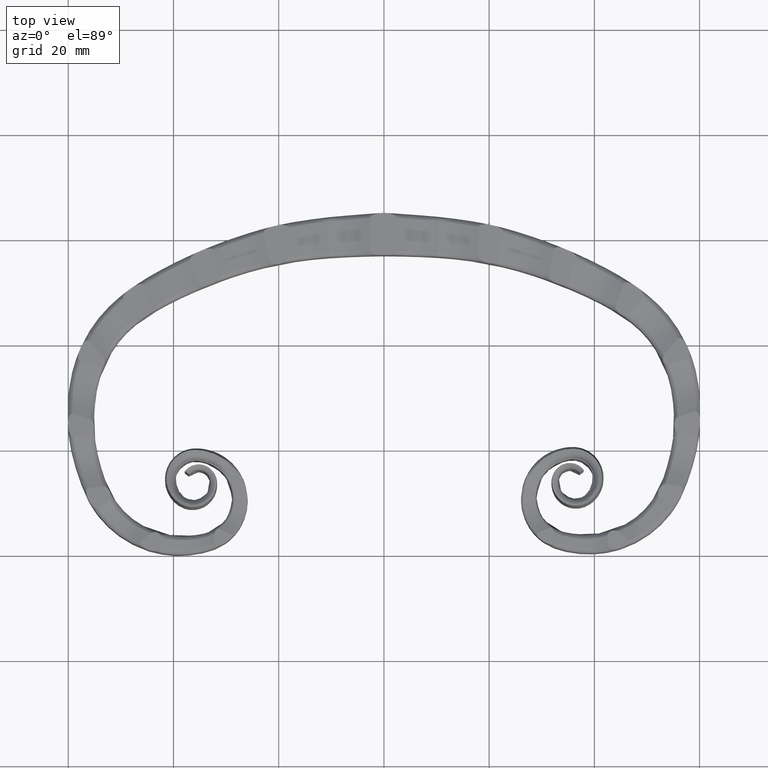
[diagram: clean part render]
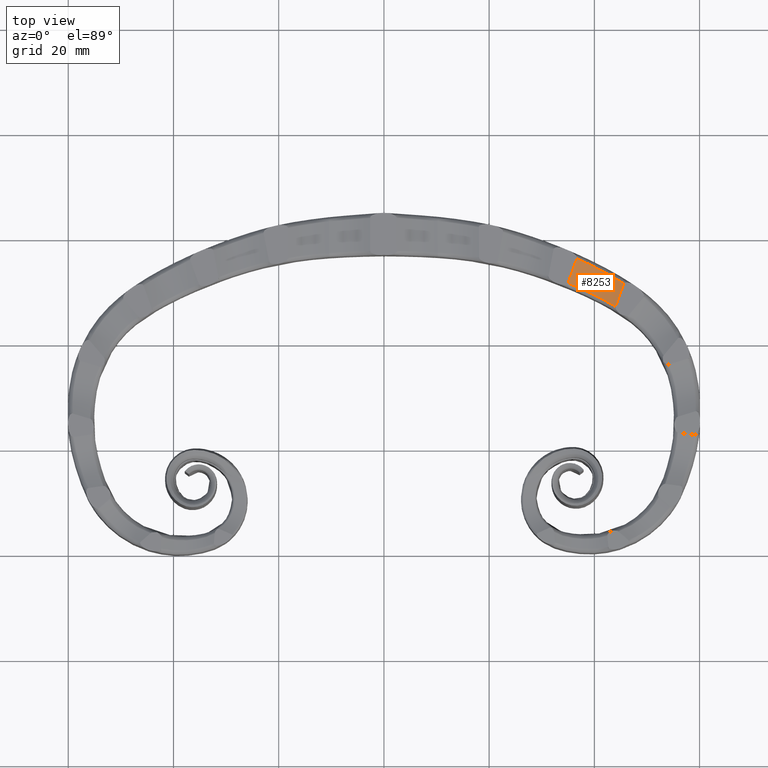
[diagram: same view with one face highlighted and labeled with its STEP entity id]
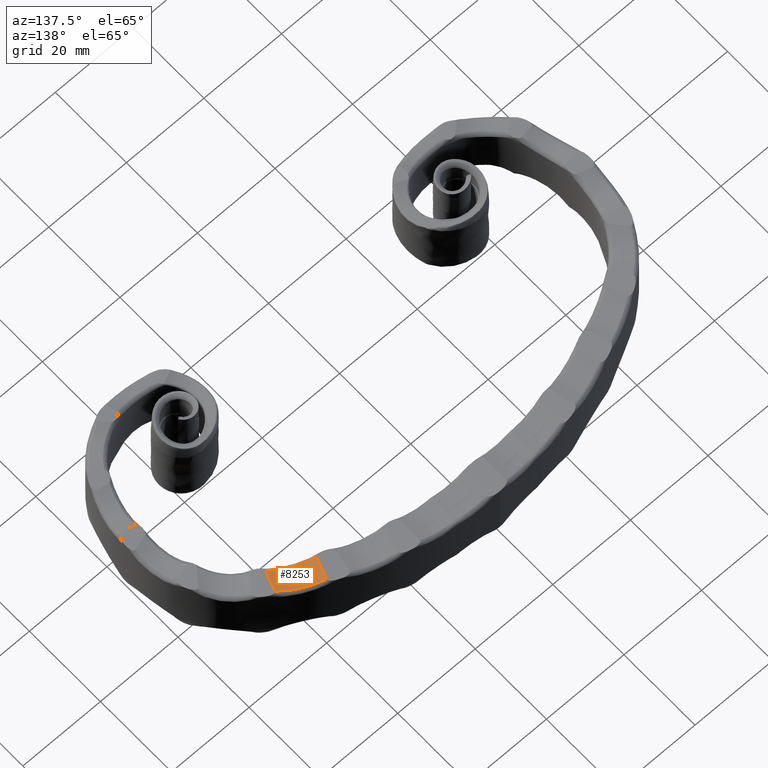
[diagram: same view with one face highlighted and labeled with its STEP entity id]
A machine part, top view. The second image highlights one B-rep face of the part: STEP entity #8253.
A second angle (auxiliary view) of the same face is appended — the face is thin or edge-on in the first view.
In plain terms, the highlighted cylindrical surface (partial cylindrical patch) has radius 13 mm, axis along (0.3354, 0.9421, -0).
Its self-contained STEP definition (entity closure, byte-faithful):
#975 = AXIS2_PLACEMENT_3D ( 'NONE', #5835, #10075, #14158 ) ;
#1256 = CARTESIAN_POINT ( 'NONE',  ( 38.15030209471146350, 55.63982523984591211, 7.416338158384940371 ) ) ;
#1363 = CARTESIAN_POINT ( 'NONE',  ( 37.40074678043171019, 55.98658624661630512, 7.665265697670046841 ) ) ;
#1475 = CARTESIAN_POINT ( 'NONE',  ( 40.44821603144964683, 54.51280984171898325, 7.019454504865123567 ) ) ;
#1507 = FACE_OUTER_BOUND ( 'NONE', #10485, .T. ) ;
#1598 = CARTESIAN_POINT ( 'NONE',  ( 44.02497945357860232, 47.17216213333128394, 7.999999999999998224 ) ) ;
#2621 = CARTESIAN_POINT ( 'NONE',  ( 43.82529224350909658, 52.64350867512079191, 7.338339782069952300 ) ) ;
#2831 = CARTESIAN_POINT ( 'NONE',  ( 40.37584020247008709, 49.20499599032513771, 7.022780855563306446 ) ) ;
#3469 = CARTESIAN_POINT ( 'NONE',  ( 24.15392766638068522, -8.649151234571599289, 7.999999999999998224 ) ) ;
#3894 = ORIENTED_EDGE ( 'NONE', *, *, #4202, .F. ) ;
#3920 = CARTESIAN_POINT ( 'NONE',  ( 44.89541346949610556, 51.98130044979595965, 7.692236888622817403 ) ) ;
#3994 = CARTESIAN_POINT ( 'NONE',  ( 36.66563244076937877, 56.31703211054389158, 7.999999999999996447 ) ) ;
#4005 = CARTESIAN_POINT ( 'NONE',  ( 43.33156289523044791, 47.59239289847433696, 7.691841660486036680 ) ) ;
#4202 = EDGE_CURVE ( 'NONE', #9231, #7543, #14065, .T. ) ;
#4308 = CARTESIAN_POINT ( 'NONE',  ( 35.37427147674651451, 51.49547221686600551, 7.833172037684717814 ) ) ;
#4580 = CARTESIAN_POINT ( 'NONE',  ( 44.02497945357860232, 47.17216213333128394, 7.999999999999998224 ) ) ;
#5190 = DIRECTION ( 'NONE',  ( 0.3353613451965385961, 0.9420895754374782882, -1.339384074314617008E-17 ) ) ;
#5510 = CARTESIAN_POINT ( 'NONE',  ( 38.05554978816153522, 50.32735156432014634, 7.080763722171203867 ) ) ;
#5520 = CARTESIAN_POINT ( 'NONE',  ( 45.24104576776642972, 51.75908994349779135, 7.836402132041729196 ) ) ;
#5565 = CARTESIAN_POINT ( 'NONE',  ( 39.98726013714549055, 49.40012106735570541, 7.000722689652190134 ) ) ;
#5724 = CARTESIAN_POINT ( 'NONE',  ( 35.75047769276639542, 51.33784604956910869, 7.686931047325169963 ) ) ;
#5745 = CARTESIAN_POINT ( 'NONE',  ( 45.57846084230289563, 51.53616723682822709, 7.999999999999996447 ) ) ;
#5758 = DIRECTION ( 'NONE',  ( 0.3353613451965385961, 0.9420895754374782882, -1.339384074314617008E-17 ) ) ;
#5835 = CARTESIAN_POINT ( 'NONE',  ( 19.44347978919330799, -6.972344508588914636, 19.99999999999999645 ) ) ;
#6904 = CARTESIAN_POINT ( 'NONE',  ( 45.57846084230289563, 51.53616723682822709, 7.999999999999996447 ) ) ;
#7098 = LINE ( 'NONE', #10483, #12387 ) ;
#7117 = CARTESIAN_POINT ( 'NONE',  ( 41.51583699414582185, 48.61150904127357109, 7.172592170416685065 ) ) ;
#7528 = VECTOR ( 'NONE', #5190, 1000.000000000000000 ) ;
#7543 = VERTEX_POINT ( 'NONE', #12637 ) ;
#7556 = ORIENTED_EDGE ( 'NONE', *, *, #15381, .T. ) ;
#8037 = CARTESIAN_POINT ( 'NONE',  ( 42.61800393445714974, 48.00485570996146834, 7.444049971249391717 ) ) ;
#8253 = ADVANCED_FACE ( 'NONE', ( #1507 ), #15123, .F. ) ;
#8425 = CARTESIAN_POINT ( 'NONE',  ( 36.89971677454056476, 50.84298121031700646, 7.330408667449920479 ) ) ;
#9231 = VERTEX_POINT ( 'NONE', #4580 ) ;
#9474 = CARTESIAN_POINT ( 'NONE',  ( 39.67582566799265464, 54.90147351933491393, 7.103035211764297863 ) ) ;
#9482 = VERTEX_POINT ( 'NONE', #5745 ) ;
#10075 = DIRECTION ( 'NONE',  ( 0.3353613451965385961, 0.9420895754374782882, -1.339384074314617008E-17 ) ) ;
#10483 = CARTESIAN_POINT ( 'NONE',  ( 14.73303191200592366, -5.295537782606221988, 7.999999999999998224 ) ) ;
#10485 = EDGE_LOOP ( 'NONE', ( #7556, #15086, #11650, #3894 ) ) ;
#10793 = CARTESIAN_POINT ( 'NONE',  ( 43.68283558574085390, 47.38322639853146967, 7.836202930379057463 ) ) ;
#10830 = CARTESIAN_POINT ( 'NONE',  ( 44.18725211285153875, 52.42371823975766887, 7.443004931177667594 ) ) ;
#11207 = CARTESIAN_POINT ( 'NONE',  ( 35.00353796045568799, 51.64791354418665748, 7.999999999999998224 ) ) ;
#11650 = ORIENTED_EDGE ( 'NONE', *, *, #15568, .F. ) ;
#12387 = VECTOR ( 'NONE', #5758, 1000.000000000000000 ) ;
#12435 = CARTESIAN_POINT ( 'NONE',  ( 36.51344628728100616, 51.01152891585614668, 7.435364849714431124 ) ) ;
#12637 = CARTESIAN_POINT ( 'NONE',  ( 35.00353796045568799, 51.64791354418665748, 7.999999999999998224 ) ) ;
#13610 = CARTESIAN_POINT ( 'NONE',  ( 41.98274345332330171, 53.70642587202807761, 7.001961586875930621 ) ) ;
#13657 = VERTEX_POINT ( 'NONE', #3994 ) ;
#13815 = CARTESIAN_POINT ( 'NONE',  ( 42.25481380541391019, 48.20859008205419372, 7.340183576659549125 ) ) ;
#13865 = CARTESIAN_POINT ( 'NONE',  ( 38.82804184007454751, 49.96787131950719640, 6.998607655529240468 ) ) ;
#14065 = B_SPLINE_CURVE_WITH_KNOTS ( 'NONE', 3,
 ( #1598, #10793, #4005, #8037, #13815, #7117, #15080, #2831, #5565, #13865, #5510, #8425, #12435, #5724, #4308, #11207 ),
 .UNSPECIFIED., .F., .F.,
 ( 4, 2, 2, 2, 2, 2, 2, 4 ),
 ( 1.734723475976805554E-18, 0.001302201858645006885, 0.002604403717290012035, 0.003906605575935017186, 0.005208807434580022336, 0.007813211151870023963, 0.009115413010515029113, 0.01041761486916003426 ),
 .UNSPECIFIED. ) ;
#14158 = DIRECTION ( 'NONE',  ( 0.9420895754374782882, -0.3353613451965384296, 0.000000000000000000 ) ) ;
#14748 = LINE ( 'NONE', #3469, #7528 ) ;
#15035 = CARTESIAN_POINT ( 'NONE',  ( 42.73021646640822979, 53.28982233176957806, 7.087501561981574660 ) ) ;
#15080 = CARTESIAN_POINT ( 'NONE',  ( 41.14005096975073172, 48.81069365813981875, 7.108864605251484114 ) ) ;
#15086 = ORIENTED_EDGE ( 'NONE', *, *, #16757, .F. ) ;
#15123 = CYLINDRICAL_SURFACE ( 'NONE', #975, 13.00000000000000000 ) ;
#15381 = EDGE_CURVE ( 'NONE', #9231, #9482, #14748, .T. ) ;
#15535 = B_SPLINE_CURVE_WITH_KNOTS ( 'NONE', 3,
 ( #15710, #1363, #1256, #16308, #9474, #1475, #17637, #13610, #15035, #2621, #10830, #3920, #5520, #6904 ),
 .UNSPECIFIED., .F., .F.,
 ( 4, 2, 2, 2, 2, 2, 4 ),
 ( 0.000000000000000000, 0.002582414584636090298, 0.003873621876954139783, 0.005164829169272189269, 0.007747243753908288240, 0.009038451046226346833, 0.01032965833854440629 ),
 .UNSPECIFIED. ) ;
#15568 = EDGE_CURVE ( 'NONE', #7543, #13657, #7098, .T. ) ;
#15710 = CARTESIAN_POINT ( 'NONE',  ( 36.66563244076937877, 56.31703211054389158, 7.999999999999996447 ) ) ;
#16308 = CARTESIAN_POINT ( 'NONE',  ( 39.29226144211896354, 55.08989055564953929, 7.165878267895758214 ) ) ;
#16757 = EDGE_CURVE ( 'NONE', #13657, #9482, #15535, .T. ) ;
#17637 = CARTESIAN_POINT ( 'NONE',  ( 40.83661844048816647, 54.31269680359046959, 6.999068767924330636 ) ) ;